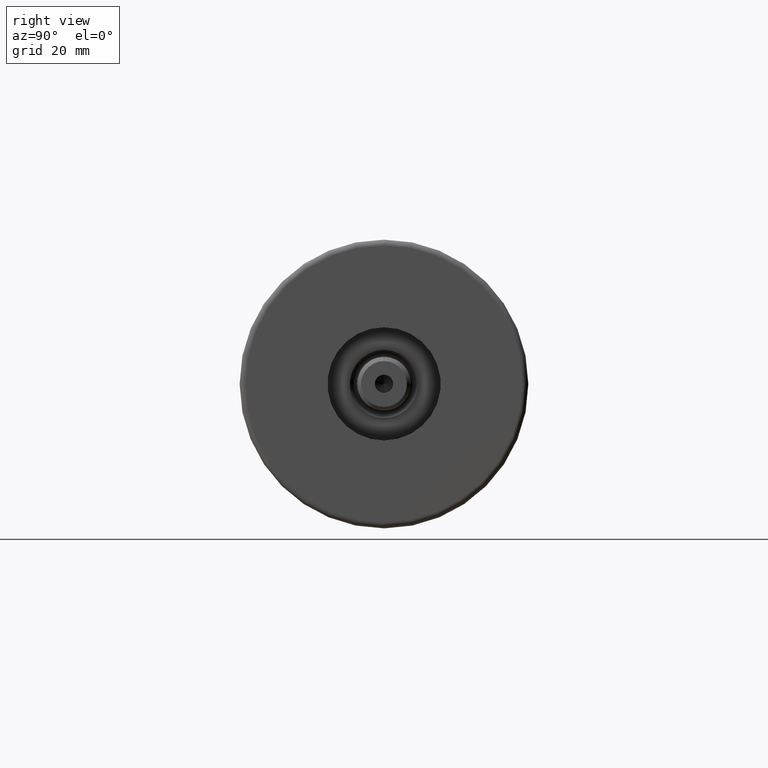
[diagram: clean part render]
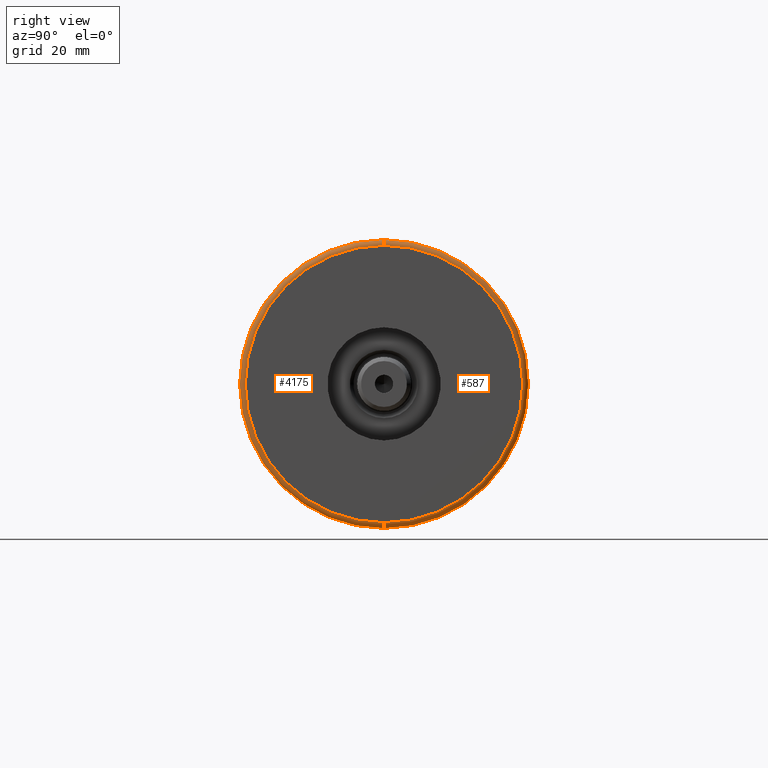
[diagram: same view with one multi-face feature highlighted, each face labeled with its STEP entity id]
A machine part, right view. The highlighted faces form ONE feature: a constant-radius fillet chain: 2 tangent blend faces with common blend radius 2 mm. The faces share edges in the B-rep.
Their STEP definitions:
[1] entity #587 (Torus):
#373 = CARTESIAN_POINT ( 'NONE',  ( 0.000000000000000000, 0.000000000000000000, 28.00000000000000000 ) ) ;
#429 = VERTEX_POINT ( 'NONE', #1969 ) ;
#587 = ADVANCED_FACE ( 'NONE', ( #4312 ), #4102, .T. ) ;
#629 = AXIS2_PLACEMENT_3D ( 'NONE', #4634, #5130, #2617 ) ;
#750 = DIRECTION ( 'NONE',  ( -0.000000000000000000, -0.000000000000000000, -1.000000000000000000 ) ) ;
#1137 = VERTEX_POINT ( 'NONE', #1210 ) ;
#1169 = AXIS2_PLACEMENT_3D ( 'NONE', #3180, #3097, #1551 ) ;
#1194 = EDGE_CURVE ( 'NONE', #429, #3894, #3676, .T. ) ;
#1210 = CARTESIAN_POINT ( 'NONE',  ( 48.99999999999998579, 0.000000000000000000, 28.00000000000000000 ) ) ;
#1551 = DIRECTION ( 'NONE',  ( -1.000000000000000000, 1.224646799147353454E-16, 0.000000000000000000 ) ) ;
#1555 = DIRECTION ( 'NONE',  ( 1.000000000000000000, 0.000000000000000000, 0.000000000000000000 ) ) ;
#1651 = EDGE_CURVE ( 'NONE', #3894, #1137, #2906, .T. ) ;
#1841 = CARTESIAN_POINT ( 'NONE',  ( 0.000000000000000000, 0.000000000000000000, 26.00000000000000355 ) ) ;
#1902 = EDGE_LOOP ( 'NONE', ( #4131, #4822, #2015, #2997 ) ) ;
#1969 = CARTESIAN_POINT ( 'NONE',  ( -50.99999999999999289, 0.000000000000000000, 26.00000000000000355 ) ) ;
#2015 = ORIENTED_EDGE ( 'NONE', *, *, #3478, .F. ) ;
#2401 = DIRECTION ( 'NONE',  ( 1.000000000000000000, 0.000000000000000000, 0.000000000000000000 ) ) ;
#2522 = VERTEX_POINT ( 'NONE', #4134 ) ;
#2617 = DIRECTION ( 'NONE',  ( 0.000000000000000000, 0.000000000000000000, -1.000000000000000000 ) ) ;
#2906 = CIRCLE ( 'NONE', #629, 2.000000000000001776 ) ;
#2997 = ORIENTED_EDGE ( 'NONE', *, *, #1651, .F. ) ;
#3097 = DIRECTION ( 'NONE',  ( 1.224646799147353207E-16, 1.000000000000000000, -0.000000000000000000 ) ) ;
#3180 = CARTESIAN_POINT ( 'NONE',  ( -48.99999999999998579, 6.000769315822029359E-15, 26.00000000000000355 ) ) ;
#3478 = EDGE_CURVE ( 'NONE', #1137, #2522, #3936, .T. ) ;
#3635 = CARTESIAN_POINT ( 'NONE',  ( 0.000000000000000000, 0.000000000000000000, 26.00000000000000355 ) ) ;
#3671 = AXIS2_PLACEMENT_3D ( 'NONE', #1841, #4230, #3883 ) ;
#3676 = CIRCLE ( 'NONE', #3837, 50.99999999999999289 ) ;
#3837 = AXIS2_PLACEMENT_3D ( 'NONE', #3635, #750, #2401 ) ;
#3883 = DIRECTION ( 'NONE',  ( 1.000000000000000000, 0.000000000000000000, 0.000000000000000000 ) ) ;
#3894 = VERTEX_POINT ( 'NONE', #4680 ) ;
#3936 = CIRCLE ( 'NONE', #4867, 48.99999999999998579 ) ;
#4102 = TOROIDAL_SURFACE ( 'NONE', #3671, 48.99999999999998579, 2.000000000000000000 ) ;
#4131 = ORIENTED_EDGE ( 'NONE', *, *, #1194, .F. ) ;
#4134 = CARTESIAN_POINT ( 'NONE',  ( -48.99999999999998579, 6.123233995736764507E-15, 28.00000000000000000 ) ) ;
#4230 = DIRECTION ( 'NONE',  ( 0.000000000000000000, 0.000000000000000000, 1.000000000000000000 ) ) ;
#4312 = FACE_OUTER_BOUND ( 'NONE', #1902, .T. ) ;
#4630 = CIRCLE ( 'NONE', #1169, 2.000000000000001776 ) ;
#4634 = CARTESIAN_POINT ( 'NONE',  ( 48.99999999999998579, 0.000000000000000000, 26.00000000000000355 ) ) ;
#4680 = CARTESIAN_POINT ( 'NONE',  ( 50.99999999999999289, 6.245698675651499656E-15, 26.00000000000000355 ) ) ;
#4822 = ORIENTED_EDGE ( 'NONE', *, *, #4835, .T. ) ;
#4835 = EDGE_CURVE ( 'NONE', #429, #2522, #4630, .T. ) ;
#4867 = AXIS2_PLACEMENT_3D ( 'NONE', #373, #5159, #1555 ) ;
#5130 = DIRECTION ( 'NONE',  ( 0.000000000000000000, -1.000000000000000000, 0.000000000000000000 ) ) ;
#5159 = DIRECTION ( 'NONE',  ( 0.000000000000000000, 0.000000000000000000, 1.000000000000000000 ) ) ;
[2] entity #4175 (Torus):
#317 = DIRECTION ( 'NONE',  ( 1.000000000000000000, 0.000000000000000000, 0.000000000000000000 ) ) ;
#355 = CARTESIAN_POINT ( 'NONE',  ( 0.000000000000000000, 0.000000000000000000, 26.00000000000000355 ) ) ;
#429 = VERTEX_POINT ( 'NONE', #1969 ) ;
#629 = AXIS2_PLACEMENT_3D ( 'NONE', #4634, #5130, #2617 ) ;
#644 = EDGE_CURVE ( 'NONE', #3894, #429, #1817, .T. ) ;
#851 = CARTESIAN_POINT ( 'NONE',  ( 0.000000000000000000, 0.000000000000000000, 26.00000000000000355 ) ) ;
#997 = EDGE_CURVE ( 'NONE', #2522, #1137, #3264, .T. ) ;
#1137 = VERTEX_POINT ( 'NONE', #1210 ) ;
#1146 = AXIS2_PLACEMENT_3D ( 'NONE', #1919, #3056, #2650 ) ;
#1169 = AXIS2_PLACEMENT_3D ( 'NONE', #3180, #3097, #1551 ) ;
#1210 = CARTESIAN_POINT ( 'NONE',  ( 48.99999999999998579, 0.000000000000000000, 28.00000000000000000 ) ) ;
#1266 = ORIENTED_EDGE ( 'NONE', *, *, #4835, .F. ) ;
#1411 = AXIS2_PLACEMENT_3D ( 'NONE', #355, #2022, #2383 ) ;
#1444 = ORIENTED_EDGE ( 'NONE', *, *, #997, .F. ) ;
#1474 = ORIENTED_EDGE ( 'NONE', *, *, #644, .F. ) ;
#1551 = DIRECTION ( 'NONE',  ( -1.000000000000000000, 1.224646799147353454E-16, 0.000000000000000000 ) ) ;
#1651 = EDGE_CURVE ( 'NONE', #3894, #1137, #2906, .T. ) ;
#1817 = CIRCLE ( 'NONE', #1411, 50.99999999999999289 ) ;
#1919 = CARTESIAN_POINT ( 'NONE',  ( 0.000000000000000000, 0.000000000000000000, 28.00000000000000000 ) ) ;
#1969 = CARTESIAN_POINT ( 'NONE',  ( -50.99999999999999289, 0.000000000000000000, 26.00000000000000355 ) ) ;
#1986 = EDGE_LOOP ( 'NONE', ( #1266, #1474, #2751, #1444 ) ) ;
#2022 = DIRECTION ( 'NONE',  ( -0.000000000000000000, -0.000000000000000000, -1.000000000000000000 ) ) ;
#2383 = DIRECTION ( 'NONE',  ( 1.000000000000000000, 0.000000000000000000, 0.000000000000000000 ) ) ;
#2522 = VERTEX_POINT ( 'NONE', #4134 ) ;
#2617 = DIRECTION ( 'NONE',  ( 0.000000000000000000, 0.000000000000000000, -1.000000000000000000 ) ) ;
#2650 = DIRECTION ( 'NONE',  ( 1.000000000000000000, 0.000000000000000000, 0.000000000000000000 ) ) ;
#2751 = ORIENTED_EDGE ( 'NONE', *, *, #1651, .T. ) ;
#2906 = CIRCLE ( 'NONE', #629, 2.000000000000001776 ) ;
#3056 = DIRECTION ( 'NONE',  ( 0.000000000000000000, 0.000000000000000000, 1.000000000000000000 ) ) ;
#3097 = DIRECTION ( 'NONE',  ( 1.224646799147353207E-16, 1.000000000000000000, -0.000000000000000000 ) ) ;
#3180 = CARTESIAN_POINT ( 'NONE',  ( -48.99999999999998579, 6.000769315822029359E-15, 26.00000000000000355 ) ) ;
#3264 = CIRCLE ( 'NONE', #1146, 48.99999999999998579 ) ;
#3697 = TOROIDAL_SURFACE ( 'NONE', #4045, 48.99999999999998579, 2.000000000000000000 ) ;
#3894 = VERTEX_POINT ( 'NONE', #4680 ) ;
#4045 = AXIS2_PLACEMENT_3D ( 'NONE', #851, #5239, #317 ) ;
#4134 = CARTESIAN_POINT ( 'NONE',  ( -48.99999999999998579, 6.123233995736764507E-15, 28.00000000000000000 ) ) ;
#4175 = ADVANCED_FACE ( 'NONE', ( #4377 ), #3697, .T. ) ;
#4377 = FACE_OUTER_BOUND ( 'NONE', #1986, .T. ) ;
#4630 = CIRCLE ( 'NONE', #1169, 2.000000000000001776 ) ;
#4634 = CARTESIAN_POINT ( 'NONE',  ( 48.99999999999998579, 0.000000000000000000, 26.00000000000000355 ) ) ;
#4680 = CARTESIAN_POINT ( 'NONE',  ( 50.99999999999999289, 6.245698675651499656E-15, 26.00000000000000355 ) ) ;
#4835 = EDGE_CURVE ( 'NONE', #429, #2522, #4630, .T. ) ;
#5130 = DIRECTION ( 'NONE',  ( 0.000000000000000000, -1.000000000000000000, 0.000000000000000000 ) ) ;
#5239 = DIRECTION ( 'NONE',  ( 0.000000000000000000, 0.000000000000000000, 1.000000000000000000 ) ) ;